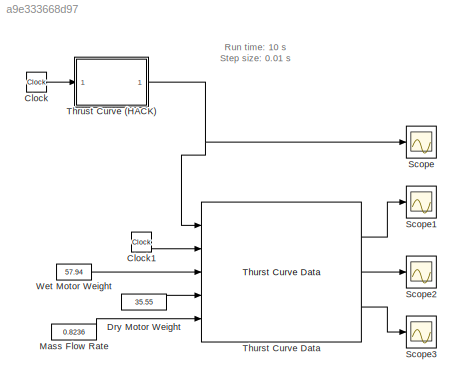
MODEL slx_a9e333668d97
KIND model
BLOCK [Clock] Clock
BLOCK [Clock] Clock1
BLOCK [Constant] Dry Motor Weight
  Value = 35.55
BLOCK [Constant] Mass Flow Rate
  Value = 0.8236
BLOCK [Scope] Scope
  DataFormat = StructureWithTime
  Floating = off
  NumInputPorts = 1
  Ports = [1]
  SampleTime = 0
  ShowLegends = off
BLOCK [Scope] Scope1
  DataFormat = StructureWithTime
  Floating = off
  NumInputPorts = 1
  Ports = [1]
  SampleTime = 0
  SaveName = ScopeData1
  ShowLegends = off
  YMax = 2400
  YMin = 0
BLOCK [Scope] Scope2
  DataFormat = StructureWithTime
  Floating = off
  NumInputPorts = 1
  Ports = [1]
  SampleTime = 0
  SaveName = ScopeData2
  ShowLegends = off
  YMax = 58
  YMin = 48
BLOCK [Scope] Scope3
  DataFormat = StructureWithTime
  Floating = off
  NumInputPorts = 1
  Ports = [1]
  SampleTime = 0
  SaveName = ScopeData3
  ShowLegends = off
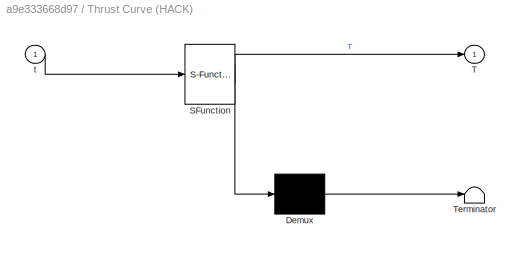
BLOCK [SubSystem] Thrust Curve (HACK)
  ErrorFcn = Stateflow.Translate.translate
  PermitHierarchicalResolution = ExplicitOnly
  Ports = [1, 1]
  RequestExecContextInheritance = off
  SFBlockType = MATLAB Function
  TreatAsAtomicUnit = on
BLOCK [Demux] Thrust Curve (HACK)/ Demux 
  Outputs = 1
  Ports = [1, 1]
BLOCK [S-Function] Thrust Curve (HACK)/ SFunction 
  EnableBusSupport = on
  FunctionName = sf_sfun
  PortCounts = [1 2]
  Ports = [1, 2]
  Tag = Stateflow S-Function rocket_thrust_data_test 2
BLOCK [Terminator] Thrust Curve (HACK)/ Terminator 
BLOCK [Outport] Thrust Curve (HACK)/T
  IconDisplay = Port number
BLOCK [Inport] Thrust Curve (HACK)/t
  IconDisplay = Port number
BLOCK [Reference] Thurst Curve Data  REF=rocket_dynamic_data_library/Thurst Curve Data  (lib defined in slx_58be5b8ac4f4)
  Ports = [5, 3]
  SourceBlock = rocket_dynamic_data_library/Thurst Curve Data
  SourceType = SubSystem
BLOCK [Constant] Wet Motor Weight
  Value = 57.94
ANNOTATION (root): Run time: 10 s Step size: 0.01 s
LINE Clock1:1 -> Thurst Curve Data:2
LINE Clock:1 -> Thrust Curve (HACK):1
LINE Dry Motor Weight:1 -> Thurst Curve Data:4
LINE Mass Flow Rate:1 -> Thurst Curve Data:5
NET Thrust Curve (HACK):1 -> Scope:1, Thurst Curve Data:1
LINE Thurst Curve Data:1 -> Scope1:1
LINE Thurst Curve Data:2 -> Scope2:1
LINE Thurst Curve Data:3 -> Scope3:1
LINE Wet Motor Weight:1 -> Thurst Curve Data:3
note: NET lines group one-source signal fan-out (src -> all destinations, sorted); 1:1 wires keep LINE
